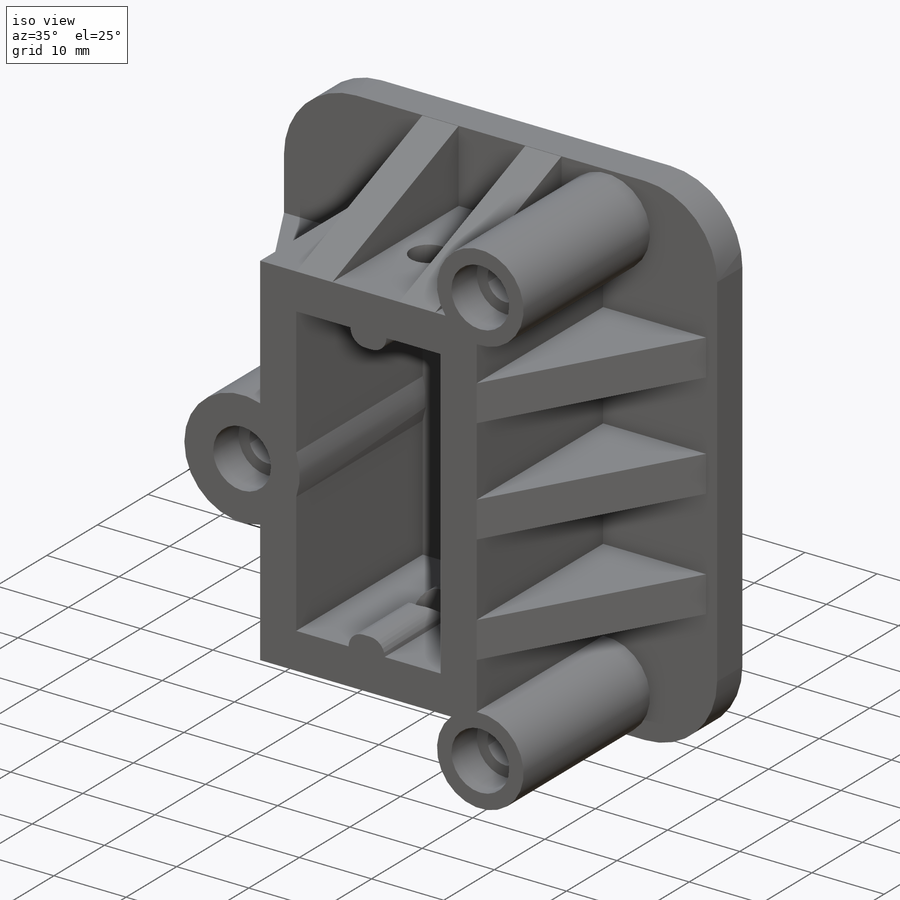
[diagram: iso view]
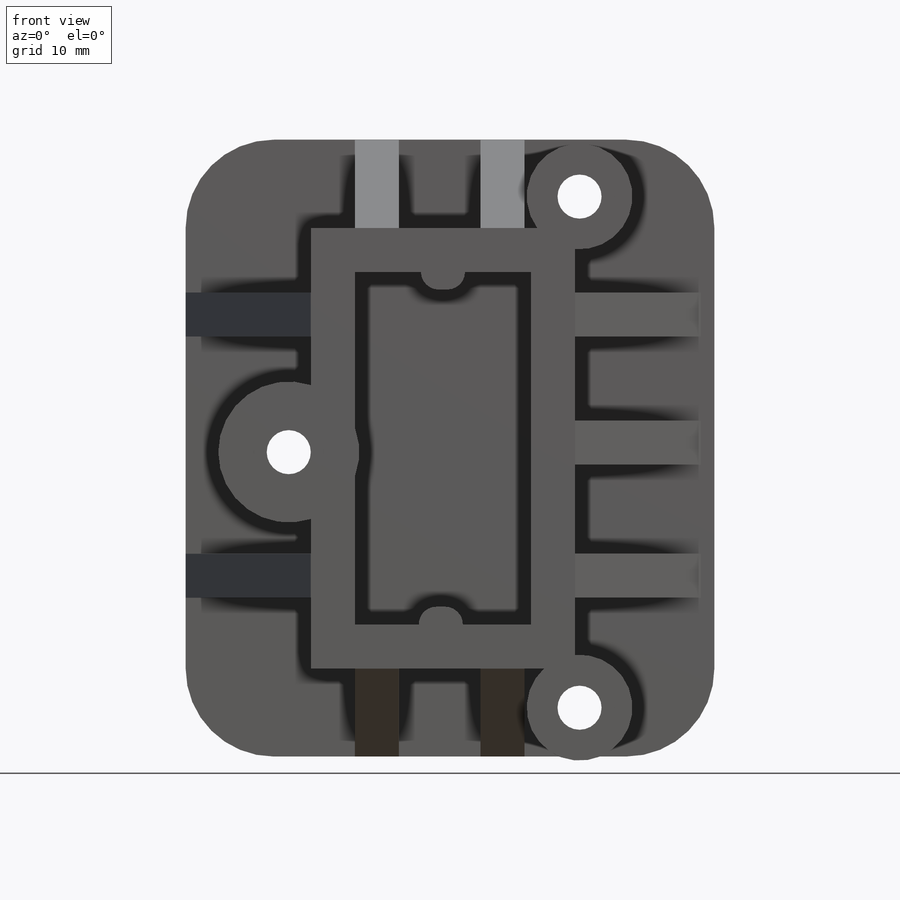
[diagram: front view]
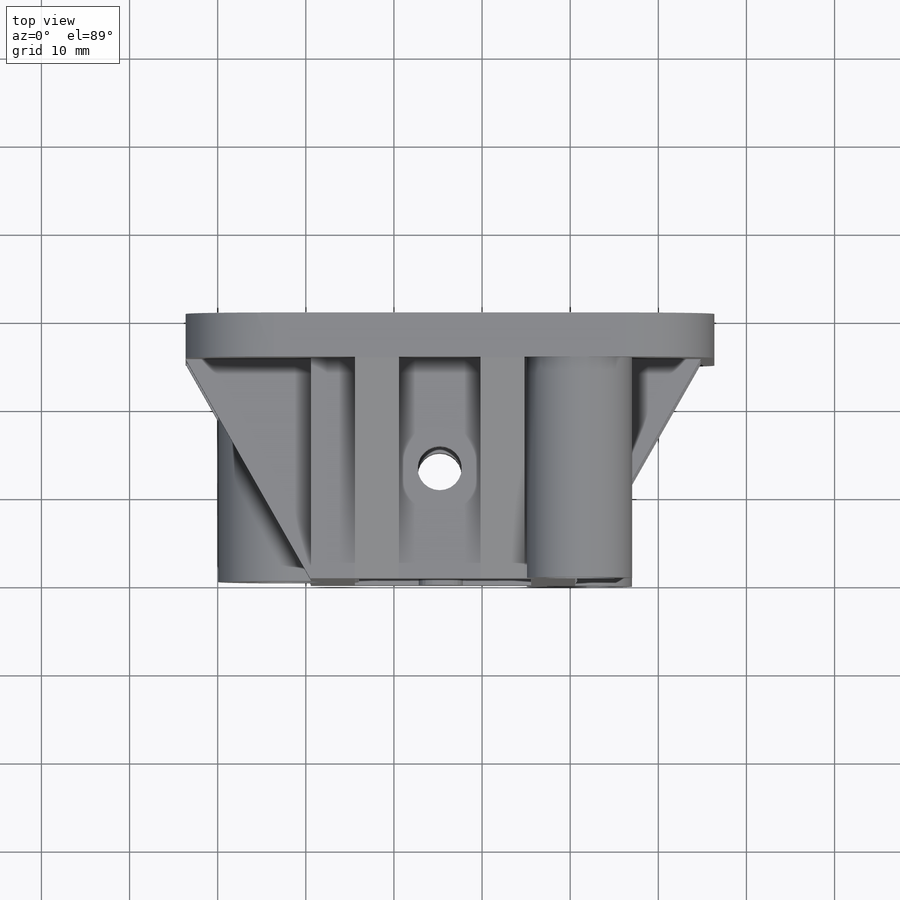
[diagram: top view]
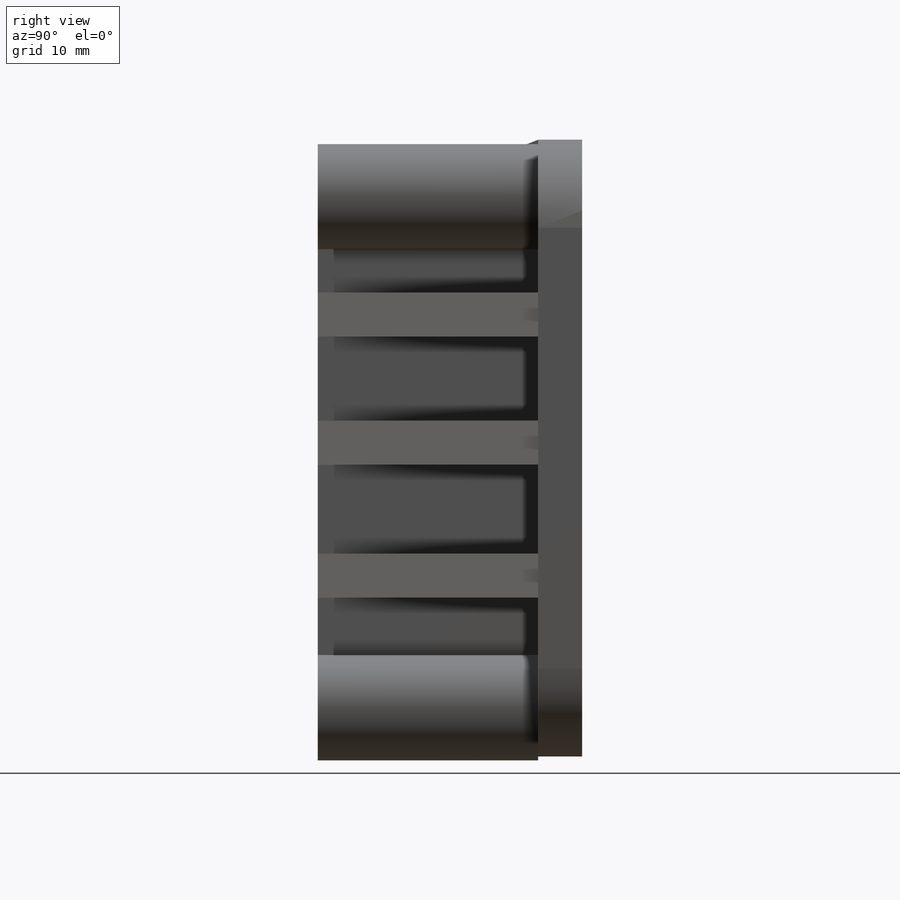
[diagram: right view]
SOLIDWORKS PART (.sldprt)
format: sldprt  version: not decoded by parser v0  size: 486,912 bytes
history: native  units: mm
features: sketch x11, extrude x5, cut_extrude x5, fillet x2, material x1 (+13 scaffold rows collapsed)
feature tree (37):
  scaffold x13  (default folders/planes/origin — collapsed)
  material  "Material <not specified>"
  sketch  "Sketch1"  dims[c1.D3=5.0mm c1.D5=~3.268102mm c1.D4=10.0mm c1.D1=60.0mm c1.D2=70.0mm c2.D4=35.0mm]
  extrude  "Boss-Extrude1"  Depth=5mm
  sketch  "Sketch3"  dims[c1.D1=40.0mm c1.D2=20.0mm c1.D3=50.0mm c1.D4=30.0mm c1.D5=~5.201047mm c1.D6=50.0mm c2.D5=5.0mm c2.D6=5.0mm c2.D7=5.0mm c2.D8=5.0mm c2.D9=5.0mm c2.D10=5.0mm c2.D11=5.0mm]
  extrude  "Boss-Extrude5"  Depth=25mm
  sketch  "Sketch5"
  cut_extrude  "Cut-Extrude2"  [1 undecoded]
  sketch  "Sketch7"  dims[D5=10.0mm D6=1.0mm D7=5.0mm]
  sketch  "Sketch8"  dims[c1.D1=5.0mm c1.D2=6.0mm c1.D3=~7.807042mm c2.D2=2.5mm c2.D3=5.0mm]
  extrude  "Boss-Extrude6"  Depth=2mm
  fillet  "Fillet3"  Radius=2mm
  sketch  "Sketch9"  dims[c1.D1=5.0mm c1.D2=2.5mm c1.D3=~5.673927mm c2.D2=2.5mm]
  extrude  "Boss-Extrude7"  Depth=2mm
  fillet  "Fillet4"  Radius=2mm
  sketch  "Sketch11"  dims[D1=4.0mm]
  cut_extrude  "Cut-Extrude4"  Depth=25mm
  sketch  "Sketch12"  dims[D1=7.0mm]
  extrude  "Boss-Extrude8"  Depth=25mm
  sketch  "Sketch13"  dims[D1=~2.556482mm]
  cut_extrude  "Cut-Extrude5"  Depth=28mm
  sketch  "Sketch14"  dims[D1=~3.890271mm]
  cut_extrude  "Cut-Extrude6"  Depth=5mm
  sketch  "Sketch15"  dims[D1=~3.869864mm]
  cut_extrude  "Cut-Extrude7"  Depth=70mm
decode coverage: 21 of 23 modeling features carry decoded parameters
note: ~ marks probable driven/reference dimensions
note: 1 parameter value undecoded
note: suppression state not decoded; provenance and decode notes live in map.json
